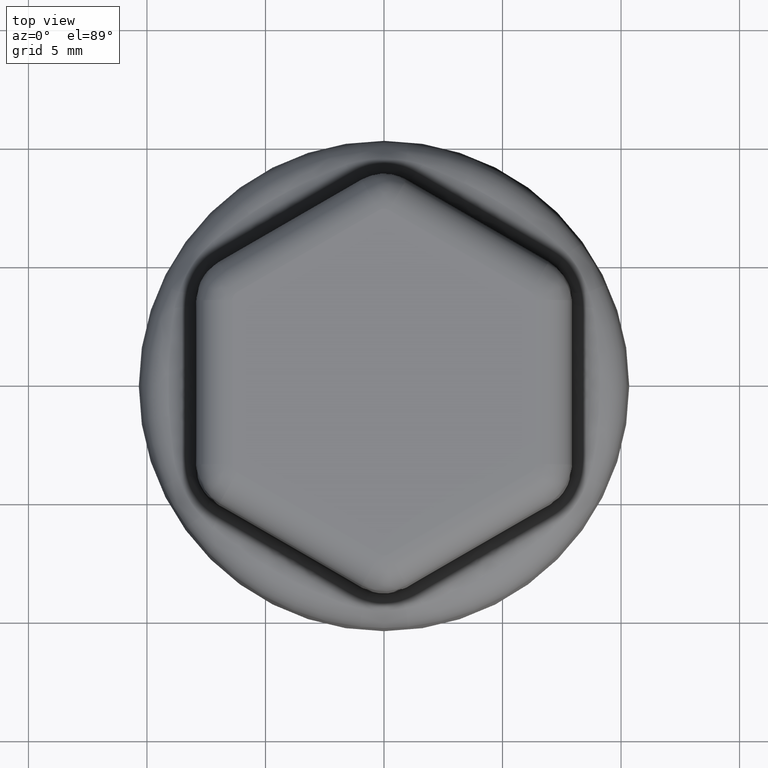
[diagram: clean part render]
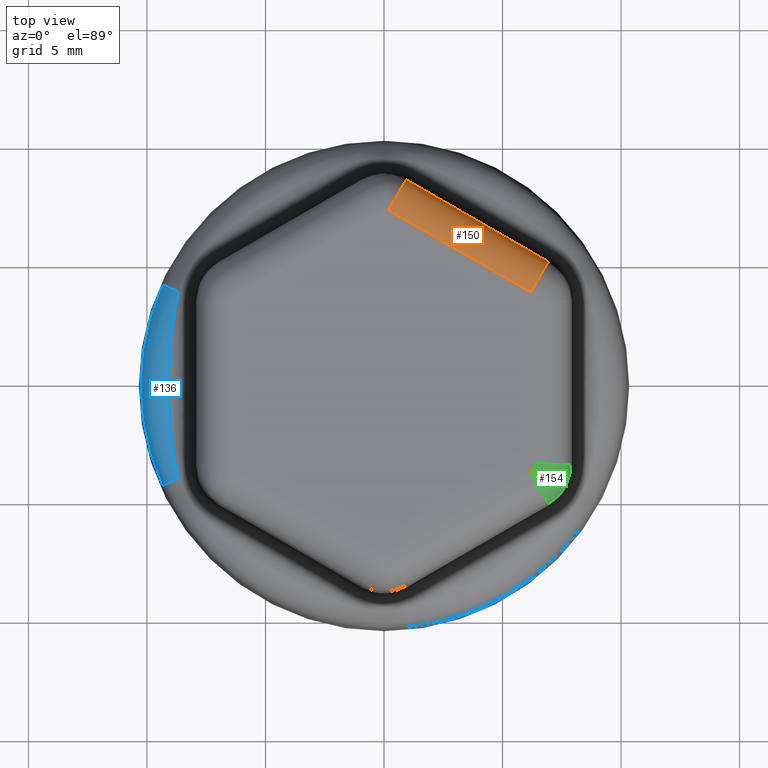
[diagram: same view with three faces highlighted in distinct colors, each labeled with its STEP entity id]
A machine part, top view with three faces highlighted in distinct colors.
Their STEP definitions:

[orange] entity #150 — the highlighted cylindrical surface (edge-blend (fillet) strip) has radius 1.5 mm, axis along (-0.866, 0.5, -0).
#150 = ADVANCED_FACE( '', ( #335 ), #336, .T. );
#335 = FACE_OUTER_BOUND( '', #2728, .T. );
#336 = CYLINDRICAL_SURFACE( '', #2729, 1.50000000000000 );
#2728 = EDGE_LOOP( '', ( #4362, #4363, #4364, #4365 ) );
#2729 = AXIS2_PLACEMENT_3D( '', #4366, #4367, #4368 );
#4362 = ORIENTED_EDGE( '', *, *, #4750, .T. );
#4363 = ORIENTED_EDGE( '', *, *, #4657, .F. );
#4364 = ORIENTED_EDGE( '', *, *, #4747, .F. );
#4365 = ORIENTED_EDGE( '', *, *, #4743, .F. );
#4366 = CARTESIAN_POINT( '', ( -1.30682416894419, 8.12877502162173, 8.30000000000007 ) );
#4367 = DIRECTION( '', ( -0.866025403784439, 0.500000000000000, -5.52286749601733E-030 ) );
#4368 = DIRECTION( '', ( 0.500000000000000, 0.866025403784439, 0.000000000000000 ) );
#4657 = EDGE_CURVE( '', #4981, #4979, #4983, .T. );
#4743 = EDGE_CURVE( '', #5120, #5122, #5123, .F. );
#4747 = EDGE_CURVE( '', #5122, #4981, #5128, .T. );
#4750 = EDGE_CURVE( '', #5120, #4979, #5132, .T. );
#4979 = VERTEX_POINT( '', #5682 );
#4981 = VERTEX_POINT( '', #5685 );
#4983 = LINE( '', #5688, #5689 );
#5120 = VERTEX_POINT( '', #6519 );
#5122 = VERTEX_POINT( '', #6540 );
#5123 = LINE( '', #6541, #6542 );
#5128 = CIRCLE( '', #6567, 1.50000000000000 );
#5132 = CIRCLE( '', #6605, 1.50000000000000 );
#5682 = CARTESIAN_POINT( '', ( 6.94308064052856, 5.09747726692536, 8.32617860965599 ) );
#5685 = CARTESIAN_POINT( '', ( 0.943004489212396, 8.56162284804600, 8.32617860965599 ) );
#5688 = CARTESIAN_POINT( '', ( -0.556938397576895, 9.42761527750286, 8.32617860965599 ) );
#5689 = VECTOR( '', #7146, 1000.00000000000 );
#6519 = CARTESIAN_POINT( '', ( 6.19319486916126, 3.79863701104422, 9.80000000000007 ) );
#6540 = CARTESIAN_POINT( '', ( 0.193118732846907, 7.26278258350356, 9.80000000000007 ) );
#6541 = CARTESIAN_POINT( '', ( -0.672874501025513, 7.76276401019620, 9.80000000000007 ) );
#6542 = VECTOR( '', #7253, 1000.00000000000 );
#6567 = AXIS2_PLACEMENT_3D( '', #7258, #7259, #7260 );
#6605 = AXIS2_PLACEMENT_3D( '', #7264, #7265, #7266 );
#7146 = DIRECTION( '', ( 0.866025403784439, -0.500000000000000, -8.67361737988403E-019 ) );
#7253 = DIRECTION( '', ( 0.866025403784439, -0.500000000000000, 5.91645678915759E-030 ) );
#7258 = CARTESIAN_POINT( '', ( 0.193118732846911, 7.26278258350357, 8.30000000000007 ) );
#7259 = DIRECTION( '', ( -0.866025409559518, 0.499999989997270, -2.61894617123604E-017 ) );
#7260 = DIRECTION( '', ( -0.499999989997270, -0.866025409559518, 0.000000000000000 ) );
#7264 = CARTESIAN_POINT( '', ( 6.19319486916126, 3.79863701104423, 8.30000000000007 ) );
#7265 = DIRECTION( '', ( -0.866025403784439, 0.500000000000000, 2.07579236567282E-017 ) );
#7266 = DIRECTION( '', ( -0.500000000000000, -0.866025403784439, 1.15229623935554E-033 ) );

[blue] entity #136 — the highlighted toroidal blend (fillet) surface has major radius 8.7479 mm and minor (blend) radius 1.5 mm.
#136 = ADVANCED_FACE( '', ( #307 ), #308, .T. );
#307 = FACE_OUTER_BOUND( '', #2045, .T. );
#308 = TOROIDAL_SURFACE( '', #2046, 8.74794148100312, 1.50000000000000 );
#2045 = EDGE_LOOP( '', ( #4274, #4275, #4276, #4277, #4278, #4279 ) );
#2046 = AXIS2_PLACEMENT_3D( '', #4280, #4281, #4282 );
#4274 = ORIENTED_EDGE( '', *, *, #4710, .T. );
#4275 = ORIENTED_EDGE( '', *, *, #4711, .T. );
#4276 = ORIENTED_EDGE( '', *, *, #4698, .F. );
#4277 = ORIENTED_EDGE( '', *, *, #4708, .F. );
#4278 = ORIENTED_EDGE( '', *, *, #4712, .T. );
#4279 = ORIENTED_EDGE( '', *, *, #4713, .T. );
#4280 = CARTESIAN_POINT( '', ( 0.000000000000000, 0.000000000000000, 1.80000000000000 ) );
#4281 = DIRECTION( '', ( 0.000000000000000, 0.000000000000000, 1.00000000000000 ) );
#4282 = DIRECTION( '', ( 1.00000000000000, 0.000000000000000, 0.000000000000000 ) );
#4698 = EDGE_CURVE( '', #5048, #5049, #5050, .T. );
#4708 = EDGE_CURVE( '', #5064, #5048, #5066, .T. );
#4710 = EDGE_CURVE( '', #5069, #5070, #5071, .T. );
#4711 = EDGE_CURVE( '', #5070, #5049, #5072, .T. );
#4712 = EDGE_CURVE( '', #5064, #5073, #5074, .T. );
#4713 = EDGE_CURVE( '', #5073, #5069, #5075, .T. );
#5048 = VERTEX_POINT( '', #6103 );
#5049 = VERTEX_POINT( '', #6104 );
#5050 = CIRCLE( '', #6105, 1.50000000000000 );
#5064 = VERTEX_POINT( '', #6199 );
#5066 = CIRCLE( '', #6217, 10.2458857831350 );
#5069 = VERTEX_POINT( '', #6220 );
#5070 = VERTEX_POINT( '', #6221 );
#5071 = B_SPLINE_CURVE_WITH_KNOTS( '', 3, ( #6222, #6223, #6224, #6225, #6226, #6227, #6228, #6229, #6230, #6231, #6232, #6233, #6234, #6235, #6236, #6237, #6238, #6239, #6240, #6241, #6242, #6243, #6244, #6245, #6246, #6247, #6248 ), .UNSPECIFIED., .F., .F., ( 4, 2, 1, 2, 1, 2, 1, 1, 1, 1, 1, 1, 1, 1, 1, 2, 2, 2, 4 ), ( 0.000000000000000, 0.000409603529674903, 0.000614405294512355, 0.000716806176931081, 0.000819207059349808, 0.00122881058902471, 0.00163841411869961, 0.00204801764837451, 0.00245762117804941, 0.00286722470772432, 0.00327682823739922, 0.00368643176707412, 0.00409603529674902, 0.00450563882642392, 0.00491524235609883, 0.00532484588577373, 0.00573444941544863, 0.00614405294512353, 0.00655365647479843 ), .UNSPECIFIED. );
#5072 = B_SPLINE_CURVE_WITH_KNOTS( '', 3, ( #6249, #6250, #6251, #6252, #6253 ), .UNSPECIFIED., .F., .F., ( 4, 1, 4 ), ( 0.000000000000000, 0.000355896833980984, 0.000711793667961968 ), .UNSPECIFIED. );
#5073 = VERTEX_POINT( '', #6254 );
#5074 = CIRCLE( '', #6255, 1.50000000000000 );
#5075 = B_SPLINE_CURVE_WITH_KNOTS( '', 3, ( #6256, #6257, #6258, #6259, #6260, #6261, #6262, #6263, #6264 ), .UNSPECIFIED., .F., .F., ( 4, 1, 2, 2, 4 ), ( 0.000000000000000, 0.000178126092816160, 0.000267189139224240, 0.000356252185632321, 0.000712504371264643 ), .UNSPECIFIED. );
#6103 = CARTESIAN_POINT( '', ( -9.33269911678431, 4.22834514634518, 1.87850393436441 ) );
#6104 = CARTESIAN_POINT( '', ( -8.66673084565846, 3.92661638903739, 3.08918535208008 ) );
#6105 = AXIS2_PLACEMENT_3D( '', #7195, #7196, #7197 );
#6199 = CARTESIAN_POINT( '', ( -9.33269911678430, -4.22834514634520, 1.87850393436441 ) );
#6217 = AXIS2_PLACEMENT_3D( '', #7207, #7208, #7209 );
#6220 = CARTESIAN_POINT( '', ( -8.83350475169166, -3.23705532965939, 3.14699742755681 ) );
#6221 = CARTESIAN_POINT( '', ( -8.83350475161929, 3.23705533011982, 3.14699742751247 ) );
#6222 = CARTESIAN_POINT( '', ( -8.83350475169166, -3.23705532965939, 3.14699742755681 ) );
#6223 = CARTESIAN_POINT( '', ( -8.85461642082650, -3.10273355934227, 3.15993009195302 ) );
#6224 = CARTESIAN_POINT( '', ( -8.87468501734700, -2.96813090444994, 3.17104827276670 ) );
#6225 = CARTESIAN_POINT( '', ( -8.90307400162726, -2.76583087015020, 3.18563108024922 ) );
#6226 = CARTESIAN_POINT( '', ( -8.91684033931088, -2.66458166726407, 3.19239591140340 ) );
#6227 = CARTESIAN_POINT( '', ( -8.92993925471561, -2.56318711835921, 3.19846544867659 ) );
#6228 = CARTESIAN_POINT( '', ( -8.93852093510409, -2.49555876269828, 3.20236647565705 ) );
#6229 = CARTESIAN_POINT( '', ( -8.95960135465865, -2.32637892653320, 3.21175594335850 ) );
#6230 = CARTESIAN_POINT( '', ( -8.97870773869578, -2.15725440401094, 3.21942653371039 ) );
#6231 = CARTESIAN_POINT( '', ( -9.00663781829093, -1.88672278391435, 3.22999819018878 ) );
#6232 = CARTESIAN_POINT( '', ( -9.03192781388296, -1.61625879320207, 3.23886712148066 ) );
#6233 = CARTESIAN_POINT( '', ( -9.06167325971979, -1.21075975202933, 3.24816854762491 ) );
#6234 = CARTESIAN_POINT( '', ( -9.08302672324378, -0.805453502136141, 3.25426825871582 ) );
#6235 = CARTESIAN_POINT( '', ( -9.09584962328495, -0.400337256283517, 3.25770848511160 ) );
#6236 = CARTESIAN_POINT( '', ( -9.10006489229671, 0.00459066565658619, 3.25880373710453 ) );
#6237 = CARTESIAN_POINT( '', ( -9.09565547644106, 0.409330975385233, 3.25765748920801 ) );
#6238 = CARTESIAN_POINT( '', ( -9.08266371740051, 0.813883463294130, 3.25416805582956 ) );
#6239 = CARTESIAN_POINT( '', ( -9.06119163568847, 1.21824696259844, 3.24802447589456 ) );
#6240 = CARTESIAN_POINT( '', ( -9.03140209317810, 1.62241922397665, 3.23869180028888 ) );
#6241 = CARTESIAN_POINT( '', ( -9.00614785465501, 1.89173753234636, 3.22982030542608 ) );
#6242 = CARTESIAN_POINT( '', ( -8.97829347605608, 2.16098913489790, 3.21926191518885 ) );
#6243 = CARTESIAN_POINT( '', ( -8.96306617518974, 2.29558159234110, 3.21314025625680 ) );
#6244 = CARTESIAN_POINT( '', ( -8.93013150350511, 2.56469724768641, 3.19872640848237 ) );
#6245 = CARTESIAN_POINT( '', ( -8.91242408224644, 2.69922046050179, 3.19043580225005 ) );
#6246 = CARTESIAN_POINT( '', ( -8.87467359438891, 2.96819393566431, 3.17104061141296 ) );
#6247 = CARTESIAN_POINT( '', ( -8.85463046195300, 3.10264422350519, 3.15993869332099 ) );
#6248 = CARTESIAN_POINT( '', ( -8.83350475161930, 3.23705533011981, 3.14699742751250 ) );
#6249 = CARTESIAN_POINT( '', ( -8.83350475161929, 3.23705533011982, 3.14699742751247 ) );
#6250 = CARTESIAN_POINT( '', ( -8.81510578449115, 3.35411768614648, 3.13572652100748 ) );
#6251 = CARTESIAN_POINT( '', ( -8.76873901939573, 3.58603073745665, 3.11440860750261 ) );
#6252 = CARTESIAN_POINT( '', ( -8.70381272661581, 3.81376571589663, 3.09679595056434 ) );
#6253 = CARTESIAN_POINT( '', ( -8.66673084565845, 3.92661638903739, 3.08918535208009 ) );
#6254 = CARTESIAN_POINT( '', ( -8.66673084565846, -3.92661638903740, 3.08918535208009 ) );
#6255 = AXIS2_PLACEMENT_3D( '', #7213, #7214, #7215 );
#6256 = CARTESIAN_POINT( '', ( -8.66673084565846, -3.92661638903740, 3.08918535208008 ) );
#6257 = CARTESIAN_POINT( '', ( -8.68524105267233, -3.87028458311063, 3.09298434365780 ) );
#6258 = CARTESIAN_POINT( '', ( -8.71130261440082, -3.78532900140980, 3.09913403365337 ) );
#6259 = CARTESIAN_POINT( '', ( -8.73479661811438, -3.69967790372082, 3.10589114872065 ) );
#6260 = CARTESIAN_POINT( '', ( -8.74988566512867, -3.64242109581192, 3.11052249892663 ) );
#6261 = CARTESIAN_POINT( '', ( -8.75714533862908, -3.61370663036843, 3.11290219959001 ) );
#6262 = CARTESIAN_POINT( '', ( -8.79197116948887, -3.46986540668622, 3.12508508981761 ) );
#6263 = CARTESIAN_POINT( '', ( -8.81513669187209, -3.35392103975036, 3.13574545436617 ) );
#6264 = CARTESIAN_POINT( '', ( -8.83350475169166, -3.23705532965939, 3.14699742755680 ) );
#7195 = CARTESIAN_POINT( '', ( -7.96826233099568, 3.61016281897234, 1.80000000000000 ) );
#7196 = DIRECTION( '', ( 0.412687124943863, 0.910872843434015, 5.26704168378244E-016 ) );
#7197 = DIRECTION( '', ( -0.910872843434015, 0.412687124943863, 0.000000000000000 ) );
#7207 = CARTESIAN_POINT( '', ( 0.000000000000000, 0.000000000000000, 1.87850393436441 ) );
#7208 = DIRECTION( '', ( 0.000000000000000, 0.000000000000000, -1.00000000000000 ) );
#7209 = DIRECTION( '', ( -1.00000000000000, 0.000000000000000, 0.000000000000000 ) );
#7213 = CARTESIAN_POINT( '', ( -7.96826233099568, -3.61016281897236, 1.80000000000000 ) );
#7214 = DIRECTION( '', ( -0.412687124943865, 0.910872843434014, -9.54530725164663E-016 ) );
#7215 = DIRECTION( '', ( -0.910872843434014, -0.412687124943865, 0.000000000000000 ) );

[green] entity #154 — the highlighted face is a freeform B-spline surface patch.
#154 = ADVANCED_FACE( '', ( #343 ), #344, .T. );
#343 = FACE_OUTER_BOUND( '', #2863, .T. );
#344 = ( B_SPLINE_SURFACE( 3, 2, ( ( #2865, #2866, #2867 ), ( #2868, #2869, #2870 ), ( #2871, #2872, #2873 ), ( #2874, #2875, #2876 ), ( #2877, #2878, #2879 ), ( #2880, #2881, #2882 ), ( #2883, #2884, #2885 ), ( #2886, #2887, #2888 ), ( #2889, #2890, #2891 ), ( #2892, #2893, #2894 ), ( #2895, #2896, #2897 ), ( #2898, #2899, #2900 ), ( #2901, #2902, #2903 ), ( #2904, #2905, #2906 ), ( #2907, #2908, #2909 ), ( #2910, #2911, #2912 ), ( #2913, #2914, #2915 ), ( #2916, #2917, #2918 ), ( #2919, #2920, #2921 ), ( #2922, #2923, #2924 ), ( #2925, #2926, #2927 ), ( #2928, #2929, #2930 ), ( #2931, #2932, #2933 ), ( #2934, #2935, #2936 ), ( #2937, #2938, #2939 ), ( #2940, #2941, #2942 ), ( #2943, #2944, #2945 ), ( #2946, #2947, #2948 ), ( #2949, #2950, #2951 ), ( #2952, #2953, #2954 ), ( #2955, #2956, #2957 ), ( #2958, #2959, #2960 ), ( #2961, #2962, #2963 ), ( #2964, #2965, #2966 ), ( #2967, #2968, #2969 ), ( #2970, #2971, #2972 ), ( #2973, #2974, #2975 ), ( #2976, #2977, #2978 ) ), .UNSPECIFIED., .F., .F., .F. )B_SPLINE_SURFACE_WITH_KNOTS( ( 4, 2, 2, 2, 2, 2, 2, 2, 2, 2, 2, 2, 2, 2, 2, 2, 2, 2, 4 ), ( 3, 3 ), ( 0.000000000000000, 2.50913085231648E-005, 5.01826170463297E-005, 7.52739255694945E-005, 0.000100365234092659, 0.000125456542615824, 0.000138002196877407, 0.000150547851138989, 0.000175639159662154, 0.000200730468185319, 0.000225821776708484, 0.000250913085231648, 0.000263458739493231, 0.000276004393754813, 0.000301095702277978, 0.000326187010801143, 0.000351278319324308, 0.000376369627847473, 0.000401460936370637 ), ( 0.000000000000000, 1.00000000000000 ), .UNSPECIFIED. )RATIONAL_B_SPLINE_SURFACE( ( ( 1.00000000000000, 0.713250449154181, 1.00000000000000 ), ( 1.00000000000000, 0.713250449087306, 1.00000000000000 ), ( 1.00000000000000, 0.713250284346242, 1.00000000000000 ), ( 1.00000000000000, 0.713249749830264, 1.00000000000000 ), ( 1.00000000000000, 0.713249380539943, 1.00000000000000 ), ( 1.00000000000000, 0.713248546305674, 1.00000000000000 ), ( 1.00000000000000, 0.713248081238585, 1.00000000000000 ), ( 1.00000000000000, 0.713247139034756, 1.00000000000000 ), ( 1.00000000000000, 0.713246661630302, 1.00000000000000 ), ( 1.00000000000000, 0.713245755814832, 1.00000000000000 ), ( 1.00000000000000, 0.713245327151583, 1.00000000000000 ), ( 1.00000000000000, 0.713244753814827, 1.00000000000000 ), ( 1.00000000000000, 0.713244574704281, 1.00000000000000 ), ( 1.00000000000000, 0.713244245370266, 1.00000000000000 ), ( 1.00000000000000, 0.713244094909244, 1.00000000000000 ), ( 1.00000000000000, 0.713243690112107, 1.00000000000000 ), ( 1.00000000000000, 0.713243482603034, 1.00000000000000 ), ( 1.00000000000000, 0.713243205242434, 1.00000000000000 ), ( 1.00000000000000, 0.713243135319754, 1.00000000000000 ), ( 1.00000000000000, 0.713243137404078, 1.00000000000000 ), ( 1.00000000000000, 0.713243209413763, 1.00000000000000 ), ( 1.00000000000000, 0.713243492052334, 1.00000000000000 ), ( 1.00000000000000, 0.713243702760073, 1.00000000000000 ), ( 1.00000000000000, 0.713244113840066, 1.00000000000000 ), ( 1.00000000000000, 0.713244266463025, 1.00000000000000 ), ( 1.00000000000000, 0.713244598003795, 1.00000000000000 ), ( 1.00000000000000, 0.713244777147405, 1.00000000000000 ), ( 1.00000000000000, 0.713245348389967, 1.00000000000000 ), ( 1.00000000000000, 0.713245774859214, 1.00000000000000 ), ( 1.00000000000000, 0.713246675807925, 1.00000000000000 ), ( 1.00000000000000, 0.713247150543825, 1.00000000000000 ), ( 1.00000000000000, 0.713248087933757, 1.00000000000000 ), ( 1.00000000000000, 0.713248550865777, 1.00000000000000 ), ( 1.00000000000000, 0.713249382021561, 1.00000000000000 ), ( 1.00000000000000, 0.713249750387560, 1.00000000000000 ), ( 1.00000000000000, 0.713250284151847, 1.00000000000000 ), ( 1.00000000000000, 0.713250449061160, 1.00000000000000 ), ( 1.00000000000000, 0.713250449154182, 1.00000000000000 ) ) )BOUNDED_SURFACE(  )REPRESENTATION_ITEM( '' )GEOMETRIC_REPRESENTATION_ITEM(  )SURFACE(  ) );
#2863 = EDGE_LOOP( '', ( #4386, #4387, #4388, #4389 ) );
#2865 = CARTESIAN_POINT( '', ( 6.38631358590072, -3.46414556444946, 9.80000000000004 ) );
#2866 = CARTESIAN_POINT( '', ( 7.86035948057425, -3.46414558146209, 9.80000000000004 ) );
#2867 = CARTESIAN_POINT( '', ( 7.88608512863531, -3.46414558175899, 8.32617860965596 ) );
#2868 = CARTESIAN_POINT( '', ( 6.38631355949689, -3.47264559019968, 9.80000000000004 ) );
#2869 = CARTESIAN_POINT( '', ( 7.86035922545959, -3.51038122950073, 9.80000000000009 ) );
#2870 = CARTESIAN_POINT( '', ( 7.88608512802007, -3.51103980333669, 8.32617861389579 ) );
#2871 = CARTESIAN_POINT( '', ( 6.38598765622970, -3.48108659572870, 9.80000000000004 ) );
#2872 = CARTESIAN_POINT( '', ( 7.85858665480298, -3.55556577747702, 9.80000000000005 ) );
#2873 = CARTESIAN_POINT( '', ( 7.88428647616831, -3.55686561964138, 8.32617790645285 ) );
#2874 = CARTESIAN_POINT( '', ( 6.38473045801347, -3.49785882603512, 9.80000000000004 ) );
#2875 = CARTESIAN_POINT( '', ( 7.85197929520092, -3.64374600893758, 9.80000000000004 ) );
#2876 = CARTESIAN_POINT( '', ( 7.87758326922421, -3.64629181849200, 8.32617561480559 ) );
#2877 = CARTESIAN_POINT( '', ( 6.38379915982942, -3.50619007420136, 9.80000000000003 ) );
#2878 = CARTESIAN_POINT( '', ( 7.84714626691983, -3.68674185755374, 9.80000000000001 ) );
#2879 = CARTESIAN_POINT( '', ( 7.87268082521940, -3.68989242457512, 8.32617403823422 ) );
#2880 = CARTESIAN_POINT( '', ( 6.38136661251527, -3.52274926169503, 9.80000000000003 ) );
#2881 = CARTESIAN_POINT( '', ( 7.83481958887088, -3.77067872076176, 9.80000000000006 ) );
#2882 = CARTESIAN_POINT( '', ( 7.86017784742129, -3.77500436629187, 8.32617046470811 ) );
#2883 = CARTESIAN_POINT( '', ( 6.37986530346438, -3.53097719015894, 9.80000000000004 ) );
#2884 = CARTESIAN_POINT( '', ( 7.82732570500436, -3.81162296441394, 9.80000000000003 ) );
#2885 = CARTESIAN_POINT( '', ( 7.85257765558139, -3.81651907085510, 8.32616847744184 ) );
#2886 = CARTESIAN_POINT( '', ( 6.37631685654881, -3.54733411060464, 9.80000000000004 ) );
#2887 = CARTESIAN_POINT( '', ( 7.80995552970406, -3.89171166174201, 9.80000000000005 ) );
#2888 = CARTESIAN_POINT( '', ( 7.83496235510941, -3.89771865390323, 8.32616444275227 ) );
#2889 = CARTESIAN_POINT( '', ( 6.37426967250568, -3.55546309421563, 9.80000000000004 ) );
#2890 = CARTESIAN_POINT( '', ( 7.80007859875143, -3.93085747242073, 9.80000000000003 ) );
#2891 = CARTESIAN_POINT( '', ( 7.82494702360336, -3.93740500361849, 8.32616240181731 ) );
#2892 = CARTESIAN_POINT( '', ( 6.36964290097468, -3.57162455842566, 9.80000000000004 ) );
#2893 = CARTESIAN_POINT( '', ( 7.77810186367529, -4.00763703914358, 9.80000000000005 ) );
#2894 = CARTESIAN_POINT( '', ( 7.80266394521857, -4.01524069389598, 8.32615852372546 ) );
#2895 = CARTESIAN_POINT( '', ( 6.36706329718184, -3.57965703606930, 9.80000000000004 ) );
#2896 = CARTESIAN_POINT( '', ( 7.76600159674304, -4.04527108014417, 9.80000000000005 ) );
#2897 = CARTESIAN_POINT( '', ( 7.79039600584010, -4.05339040160061, 8.32615669054195 ) );
#2898 = CARTESIAN_POINT( '', ( 6.36279689759944, -3.59163379374720, 9.80000000000004 ) );
#2899 = CARTESIAN_POINT( '', ( 7.74622270954697, -4.10080223969957, 9.80000000000004 ) );
#2900 = CARTESIAN_POINT( '', ( 7.77034432567646, -4.10968018478659, 8.32615423631723 ) );
#2901 = CARTESIAN_POINT( '', ( 6.36131204003052, -3.59560368733193, 9.80000000000004 ) );
#2902 = CARTESIAN_POINT( '', ( 7.73937392032424, -4.11911093868254, 9.80000000000002 ) );
#2903 = CARTESIAN_POINT( '', ( 7.76340134163676, -4.12823864212436, 8.32615347048184 ) );
#2904 = CARTESIAN_POINT( '', ( 6.35823001165420, -3.60347177006639, 9.80000000000004 ) );
#2905 = CARTESIAN_POINT( '', ( 7.72522323657909, -4.15523995149464, 9.80000000000006 ) );
#2906 = CARTESIAN_POINT( '', ( 7.74905633662312, -4.16485986543828, 8.32615206021475 ) );
#2907 = CARTESIAN_POINT( '', ( 6.35663127374326, -3.60737434560583, 9.80000000000004 ) );
#2908 = CARTESIAN_POINT( '', ( 7.71791408122026, -4.17308038145370, 9.80000000000003 ) );
#2909 = CARTESIAN_POINT( '', ( 7.74164707977159, -4.18294307069574, 8.32615141711233 ) );
#2910 = CARTESIAN_POINT( '', ( 6.35166541917121, -3.61898959916149, 9.80000000000004 ) );
#2911 = CARTESIAN_POINT( '', ( 7.69529350204177, -4.22599485886855, 9.80000000000005 ) );
#2912 = CARTESIAN_POINT( '', ( 7.71871709032462, -4.23657686193296, 8.32614968376677 ) );
#2913 = CARTESIAN_POINT( '', ( 6.34812890932419, -3.62660993911353, 9.80000000000004 ) );
#2914 = CARTESIAN_POINT( '', ( 7.67929146157936, -4.26046305072708, 9.80000000000002 ) );
#2915 = CARTESIAN_POINT( '', ( 7.70249700458389, -4.27151273301905, 8.32614879673545 ) );
#2916 = CARTESIAN_POINT( '', ( 6.34061532978600, -3.64161046506491, 9.80000000000004 ) );
#2917 = CARTESIAN_POINT( '', ( 7.64542270056652, -4.32808316191430, 9.80000000000005 ) );
#2918 = CARTESIAN_POINT( '', ( 7.66816774190752, -4.34004957775574, 8.32614760916513 ) );
#2919 = CARTESIAN_POINT( '', ( 6.33663822895655, -3.64899063409044, 9.80000000000004 ) );
#2920 = CARTESIAN_POINT( '', ( 7.62755596557600, -4.36123431723958, 9.80000000000004 ) );
#2921 = CARTESIAN_POINT( '', ( 7.65005864760073, -4.37364982011823, 8.32614731019389 ) );
#2922 = CARTESIAN_POINT( '', ( 6.32824576028745, -3.66351206803748, 9.80000000000004 ) );
#2923 = CARTESIAN_POINT( '', ( 7.58985545100367, -4.42646725460154, 9.80000000000004 ) );
#2924 = CARTESIAN_POINT( '', ( 7.61184726093122, -4.43976674445263, 8.32614731921048 ) );
#2925 = CARTESIAN_POINT( '', ( 6.32383040222461, -3.67065333828842, 9.80000000000004 ) );
#2926 = CARTESIAN_POINT( '', ( 7.57002208339447, -4.45854847416267, 9.80000000000003 ) );
#2927 = CARTESIAN_POINT( '', ( 7.59174537418562, -4.47228284354777, 8.32614762691590 ) );
#2928 = CARTESIAN_POINT( '', ( 6.31455503400075, -3.68469349410553, 9.80000000000004 ) );
#2929 = CARTESIAN_POINT( '', ( 7.52820465011971, -4.52184547445361, 9.80000000000004 ) );
#2930 = CARTESIAN_POINT( '', ( 7.54936169343369, -4.53643917784172, 8.32614883727362 ) );
#2931 = CARTESIAN_POINT( '', ( 6.30969507622795, -3.69159240822909, 9.80000000000004 ) );
#2932 = CARTESIAN_POINT( '', ( 7.50622141589267, -4.55306094024357, 9.80000000000002 ) );
#2933 = CARTESIAN_POINT( '', ( 7.52708062744872, -4.56807901181424, 8.32614973778198 ) );
#2934 = CARTESIAN_POINT( '', ( 6.30205989167617, -3.70175258104097, 9.80000000000004 ) );
#2935 = CARTESIAN_POINT( '', ( 7.47142740766549, -4.59935855394351, 9.80000000000005 ) );
#2936 = CARTESIAN_POINT( '', ( 7.49181457083457, -4.61500772340656, 8.32615149818175 ) );
#2937 = CARTESIAN_POINT( '', ( 6.29946119252868, -3.70510223402224, 9.80000000000004 ) );
#2938 = CARTESIAN_POINT( '', ( 7.45954349997890, -4.61467752283617, 9.80000000000003 ) );
#2939 = CARTESIAN_POINT( '', ( 7.47976926281437, -4.63053574533541, 8.32615215077696 ) );
#2940 = CARTESIAN_POINT( '', ( 6.29418336624997, -3.71169280323027, 9.80000000000004 ) );
#2941 = CARTESIAN_POINT( '', ( 7.43529818613545, -4.64495105737301, 9.80000000000004 ) );
#2942 = CARTESIAN_POINT( '', ( 7.45519434801768, -4.66122308038790, 8.32615356989487 ) );
#2943 = CARTESIAN_POINT( '', ( 6.29150042669383, -3.71493884107008, 9.80000000000004 ) );
#2944 = CARTESIAN_POINT( '', ( 7.42291960695078, -4.65992881839740, 9.80000000000004 ) );
#2945 = CARTESIAN_POINT( '', ( 7.44264728015535, -4.67640586006882, 8.32615433613771 ) );
#2946 = CARTESIAN_POINT( '', ( 6.28331975600122, -3.72452946846583, 9.80000000000004 ) );
#2947 = CARTESIAN_POINT( '', ( 7.38497216472332, -4.70441282136504, 9.80000000000002 ) );
#2948 = CARTESIAN_POINT( '', ( 7.40418266162628, -4.72149987728390, 8.32615678149212 ) );
#2949 = CARTESIAN_POINT( '', ( 6.27769038712501, -3.73072681159110, 9.80000000000003 ) );
#2950 = CARTESIAN_POINT( '', ( 7.35859411450315, -4.73347203279866, 9.80000000000001 ) );
#2951 = CARTESIAN_POINT( '', ( 7.37744406206413, -4.75095891287593, 8.32615860516499 ) );
#2952 = CARTESIAN_POINT( '', ( 6.26607650611825, -3.74272424416096, 9.80000000000003 ) );
#2953 = CARTESIAN_POINT( '', ( 7.30339859778887, -4.79048484164593, 9.80000000000004 ) );
#2954 = CARTESIAN_POINT( '', ( 7.32149126239963, -4.80875951283227, 8.32616246255058 ) );
#2955 = CARTESIAN_POINT( '', ( 6.26009201405903, -3.74852435605687, 9.80000000000004 ) );
#2956 = CARTESIAN_POINT( '', ( 7.27458119271807, -4.81843903547245, 9.80000000000002 ) );
#2957 = CARTESIAN_POINT( '', ( 7.29227690366668, -4.83710146662515, 8.32616449194149 ) );
#2958 = CARTESIAN_POINT( '', ( 6.24775699958692, -3.75971514815194, 9.80000000000004 ) );
#2959 = CARTESIAN_POINT( '', ( 7.21417022880358, -4.87324069792256, 9.80000000000005 ) );
#2960 = CARTESIAN_POINT( '', ( 7.23103003850341, -4.89266692455748, 8.32616850615741 ) );
#2961 = CARTESIAN_POINT( '', ( 6.24140651795018, -3.76510587396227, 9.80000000000003 ) );
#2962 = CARTESIAN_POINT( '', ( 7.18257590663880, -4.90008945766228, 9.80000000000001 ) );
#2963 = CARTESIAN_POINT( '', ( 7.19899644825226, -4.91989140045321, 8.32617048415138 ) );
#2964 = CARTESIAN_POINT( '', ( 6.22832131782196, -3.77545752858427, 9.80000000000003 ) );
#2965 = CARTESIAN_POINT( '', ( 7.11624071995263, -4.95256238336083, 9.80000000000004 ) );
#2966 = CARTESIAN_POINT( '', ( 7.13173444196742, -4.97310216718683, 8.32617404464644 ) );
#2967 = CARTESIAN_POINT( '', ( 6.22158665095321, -3.78041851513990, 9.80000000000004 ) );
#2968 = CARTESIAN_POINT( '', ( 7.08149726034471, -4.97818846169431, 9.80000000000004 ) );
#2969 = CARTESIAN_POINT( '', ( 7.09650300765295, -4.99908992333877, 8.32617561710520 ) );
#2970 = CARTESIAN_POINT( '', ( 6.20770699916745, -3.78988151753175, 9.80000000000004 ) );
#2971 = CARTESIAN_POINT( '', ( 7.00852301181429, -5.02793868100553, 9.80000000000003 ) );
#2972 = CARTESIAN_POINT( '', ( 7.02249889420283, -5.04954526275089, 8.32617790570627 ) );
#2973 = CARTESIAN_POINT( '', ( 6.20056200090898, -3.79438356280383, 9.80000000000003 ) );
#2974 = CARTESIAN_POINT( '', ( 6.97029113304161, -5.05206155518595, 9.80000000000001 ) );
#2975 = CARTESIAN_POINT( '', ( 6.98372488979338, -5.07401129795640, 8.32617861408029 ) );
#2976 = CARTESIAN_POINT( '', ( 6.19319484806703, -3.79863702322300, 9.80000000000003 ) );
#2977 = CARTESIAN_POINT( '', ( 6.93021781014367, -5.07519820584437, 9.80000000000003 ) );
#2978 = CARTESIAN_POINT( '', ( 6.94308063443144, -5.09747727044554, 8.32617860965596 ) );
#4386 = ORIENTED_EDGE( '', *, *, #4759, .T. );
#4387 = ORIENTED_EDGE( '', *, *, #4740, .F. );
#4388 = ORIENTED_EDGE( '', *, *, #4756, .F. );
#4389 = ORIENTED_EDGE( '', *, *, #4760, .F. );
#4740 = EDGE_CURVE( '', #5114, #5116, #5117, .T. );
#4756 = EDGE_CURVE( '', #5142, #5114, #5143, .T. );
#4759 = EDGE_CURVE( '', #5000, #5116, #5146, .T. );
#4760 = EDGE_CURVE( '', #5000, #5142, #5147, .T. );
#5000 = VERTEX_POINT( '', #5854 );
#5114 = VERTEX_POINT( '', #6492 );
#5116 = VERTEX_POINT( '', #6495 );
#5117 = B_SPLINE_CURVE_WITH_KNOTS( '', 3, ( #6496, #6497, #6498, #6499, #6500, #6501, #6502, #6503, #6504, #6505, #6506, #6507, #6508, #6509, #6510, #6511, #6512, #6513, #6514, #6515 ), .UNSPECIFIED., .F., .F., ( 4, 1, 2, 1, 2, 2, 1, 2, 2, 2, 1, 4 ), ( 0.000000000000000, 4.99634261433462E-005, 9.99268522866925E-005, 0.000124908565358366, 0.000137399421894201, 0.000149890278430036, 0.000199853704573378, 0.000249817130716720, 0.000274798843788391, 0.000299780556860062, 0.000349743983003404, 0.000399707409146746 ), .UNSPECIFIED. );
#5142 = VERTEX_POINT( '', #6661 );
#5143 = CIRCLE( '', #6662, 1.50000000000000 );
#5146 = CIRCLE( '', #6666, 1.50000000000000 );
#5147 = B_SPLINE_CURVE_WITH_KNOTS( '', 3, ( #6667, #6668, #6669, #6670, #6671, #6672, #6673, #6674, #6675, #6676, #6677, #6678, #6679, #6680, #6681, #6682, #6683, #6684, #6685, #6686, #6687, #6688, #6689, #6690, #6691, #6692, #6693, #6694, #6695, #6696, #6697, #6698, #6699, #6700, #6701 ), .UNSPECIFIED., .F., .F., ( 4, 2, 1, 1, 1, 1, 1, 1, 2, 2, 2, 2, 2, 2, 2, 1, 2, 2, 2, 2, 4 ), ( -5.99999999751749E-008, 1.85891864316165E-006, 3.77783728629847E-006, 7.61567457257083E-006, 1.52913491451155E-005, 3.06426982902050E-005, 6.13453965803839E-005, 0.000122750793160742, 0.000245561586321457, 0.000491183172642888, 0.000613993965803604, 0.000675399362383961, 0.000736804758964318, 0.000982426345285750, 0.00110523713844647, 0.00116664253502682, 0.00119734523331700, 0.00122804793160718, 0.00147366951792863, 0.00171929110425008, 0.00196491269057154 ), .UNSPECIFIED. );
#5854 = CARTESIAN_POINT( '', ( 7.88608512863531, -3.46414558175899, 8.32617860965596 ) );
#6492 = CARTESIAN_POINT( '', ( 6.19319485305886, -3.79863702034096, 9.80000000000003 ) );
#6495 = CARTESIAN_POINT( '', ( 6.38631358590072, -3.46414558175900, 9.80000000000004 ) );
#6496 = CARTESIAN_POINT( '', ( 6.19319485305886, -3.79863702034097, 9.80000000000003 ) );
#6497 = CARTESIAN_POINT( '', ( 6.20792924872184, -3.79013011281176, 9.80000000000003 ) );
#6498 = CARTESIAN_POINT( '', ( 6.23562864513503, -3.77113710028420, 9.80000000000003 ) );
#6499 = CARTESIAN_POINT( '', ( 6.26026957021392, -3.74872296413936, 9.80000000000004 ) );
#6500 = CARTESIAN_POINT( '', ( 6.27769038483630, -3.73072680973319, 9.80000000000004 ) );
#6501 = CARTESIAN_POINT( '', ( 6.28613444083033, -3.72143079912415, 9.80000000000003 ) );
#6502 = CARTESIAN_POINT( '', ( 6.29418336463960, -3.71169280430097, 9.80000000000004 ) );
#6503 = CARTESIAN_POINT( '', ( 6.29946119140544, -3.70510223636506, 9.80000000000004 ) );
#6504 = CARTESIAN_POINT( '', ( 6.30205989272694, -3.70175258464300, 9.80000000000004 ) );
#6505 = CARTESIAN_POINT( '', ( 6.31478518624169, -3.68481895701348, 9.80000000000003 ) );
#6506 = CARTESIAN_POINT( '', ( 6.33331408038978, -3.65672674113541, 9.80000000000004 ) );
#6507 = CARTESIAN_POINT( '', ( 6.34835483767645, -3.62673310399539, 9.80000000000003 ) );
#6508 = CARTESIAN_POINT( '', ( 6.35828655928962, -3.60350260535417, 9.80000000000004 ) );
#6509 = CARTESIAN_POINT( '', ( 6.36137476142250, -3.59562605566215, 9.80000000000004 ) );
#6510 = CARTESIAN_POINT( '', ( 6.36706329321005, -3.57965704623679, 9.80000000000004 ) );
#6511 = CARTESIAN_POINT( '', ( 6.36964289546191, -3.57162456880278, 9.80000000000004 ) );
#6512 = CARTESIAN_POINT( '', ( 6.37658305961435, -3.54738237517718, 9.80000000000004 ) );
#6513 = CARTESIAN_POINT( '', ( 6.38371731041526, -3.51467530745529, 9.80000000000004 ) );
#6514 = CARTESIAN_POINT( '', ( 6.38631358481839, -3.48114568973855, 9.80000000000004 ) );
#6515 = CARTESIAN_POINT( '', ( 6.38631358590072, -3.46414558175900, 9.80000000000004 ) );
#6661 = CARTESIAN_POINT( '', ( 6.94308063942328, -5.09747726756350, 8.32617860965596 ) );
#6662 = AXIS2_PLACEMENT_3D( '', #7269, #7270, #7271 );
#6666 = AXIS2_PLACEMENT_3D( '', #7276, #7277, #7278 );
#6667 = CARTESIAN_POINT( '', ( 7.88608512863531, -3.46414558175899, 8.32617860965596 ) );
#6668 = CARTESIAN_POINT( '', ( 7.88608512862481, -3.46478522130679, 8.32617860983459 ) );
#6669 = CARTESIAN_POINT( '', ( 7.88608478385032, -3.46544359349802, 8.32617860952072 ) );
#6670 = CARTESIAN_POINT( '', ( 7.88608340324125, -3.46674234730293, 8.32617860898035 ) );
#6671 = CARTESIAN_POINT( '', ( 7.88608029672870, -3.46869029548506, 8.32617860776519 ) );
#6672 = CARTESIAN_POINT( '', ( 7.88606580372721, -3.47323423106526, 8.32617860210888 ) );
#6673 = CARTESIAN_POINT( '', ( 7.88600787725930, -3.48231700144258, 8.32617857960271 ) );
#6674 = CARTESIAN_POINT( '', ( 7.88577655675156, -3.50046219093339, 8.32617849054285 ) );
#6675 = CARTESIAN_POINT( '', ( 7.88485431928128, -3.53667156562504, 8.32617814212913 ) );
#6676 = CARTESIAN_POINT( '', ( 7.88118839164370, -3.60876928232808, 8.32617681229854 ) );
#6677 = CARTESIAN_POINT( '', ( 7.87497694266204, -3.67002637149690, 8.32617475971841 ) );
#6678 = CARTESIAN_POINT( '', ( 7.85855425717229, -3.79183558370074, 8.32616991175494 ) );
#6679 = CARTESIAN_POINT( '', ( 7.84229015512539, -3.87210483796891, 8.32616570356834 ) );
#6680 = CARTESIAN_POINT( '', ( 7.80997196629639, -3.99111245354112, 8.32615971205911 ) );
#6681 = CARTESIAN_POINT( '', ( 7.79787460055563, -4.03054819043857, 8.32615776556985 ) );
#6682 = CARTESIAN_POINT( '', ( 7.77770688847148, -4.08934547581103, 8.32615510886257 ) );
#6683 = CARTESIAN_POINT( '', ( 7.77063666655189, -4.10890987973340, 8.32615426597589 ) );
#6684 = CARTESIAN_POINT( '', ( 7.75591499985606, -4.14765792818943, 8.32615270426709 ) );
#6685 = CARTESIAN_POINT( '', ( 7.74825505526278, -4.16686904743154, 8.32615198409348 ) );
#6686 = CARTESIAN_POINT( '', ( 7.70848077619269, -4.26212155601198, 8.32614873486247 ) );
#6687 = CARTESIAN_POINT( '', ( 7.67196436986698, -4.33576544454353, 8.32614730261165 ) );
#6688 = CARTESIAN_POINT( '', ( 7.61028045464049, -4.44246826150736, 8.32614732079150 ) );
#6689 = CARTESIAN_POINT( '', ( 7.58856333843868, -4.47740637763953, 8.32614767963195 ) );
#6690 = CARTESIAN_POINT( '', ( 7.55423251832550, -4.52885764660976, 8.32614872403975 ) );
#6691 = CARTESIAN_POINT( '', ( 7.53662791907342, -4.55434408544197, 8.32614937199592 ) );
#6692 = CARTESIAN_POINT( '', ( 7.51835674520600, -4.57946748767855, 8.32615019702079 ) );
#6693 = CARTESIAN_POINT( '', ( 7.50602669568305, -4.59613512723277, 8.32615078458666 ) );
#6694 = CARTESIAN_POINT( '', ( 7.49978281195552, -4.60443382538264, 8.32615109739055 ) );
#6695 = CARTESIAN_POINT( '', ( 7.44299810839137, -4.67863941606929, 8.32615406830765 ) );
#6696 = CARTESIAN_POINT( '', ( 7.38889195831110, -4.74048814692172, 8.32615781661691 ) );
#6697 = CARTESIAN_POINT( '', ( 7.27369104473145, -4.85627129757028, 8.32616575779118 ) );
#6698 = CARTESIAN_POINT( '', ( 7.21259468527391, -4.91020391001141, 8.32616994074295 ) );
#6699 = CARTESIAN_POINT( '', ( 7.08329328362896, -5.01001885052133, 8.32617637727372 ) );
#6700 = CARTESIAN_POINT( '', ( 7.01508969157758, -5.05590282080937, 8.32617860966290 ) );
#6701 = CARTESIAN_POINT( '', ( 6.94308063942328, -5.09747726756350, 8.32617860965596 ) );
#7269 = CARTESIAN_POINT( '', ( 6.19319485305887, -3.79863702034096, 8.30000000000003 ) );
#7270 = DIRECTION( '', ( -0.866025398011166, -0.500000009999601, -3.88236992152189E-015 ) );
#7271 = DIRECTION( '', ( 0.500000009999601, -0.866025398011166, 0.000000000000000 ) );
#7276 = CARTESIAN_POINT( '', ( 6.38631358590072, -3.46414558175899, 8.30000000000004 ) );
#7277 = DIRECTION( '', ( -2.18511961721856E-016, -1.00000000000000, -4.04768811061255E-015 ) );
#7278 = DIRECTION( '', ( 0.000000000000000, 4.04768811061255E-015, -1.00000000000000 ) );